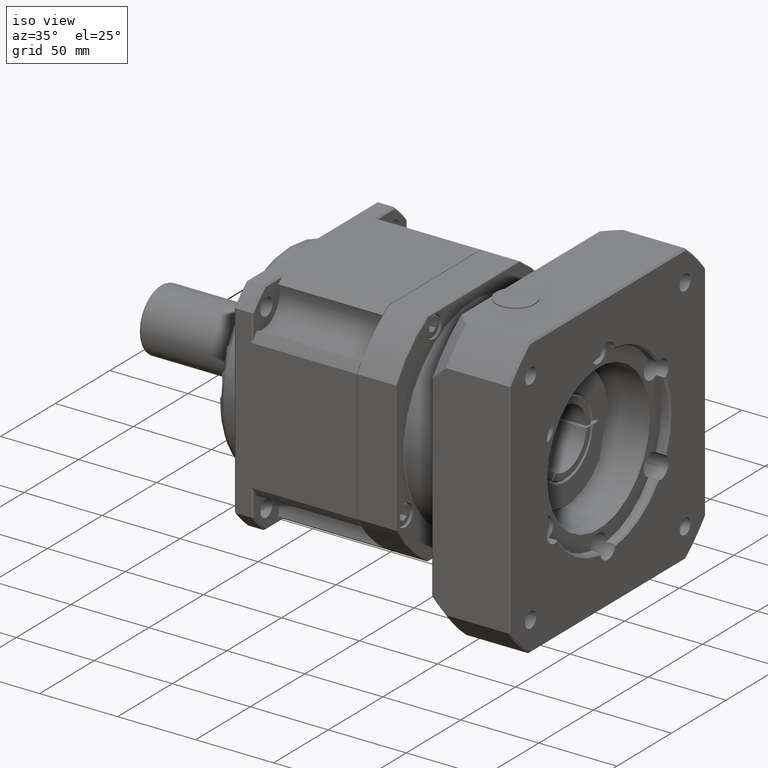
[diagram: clean part render]
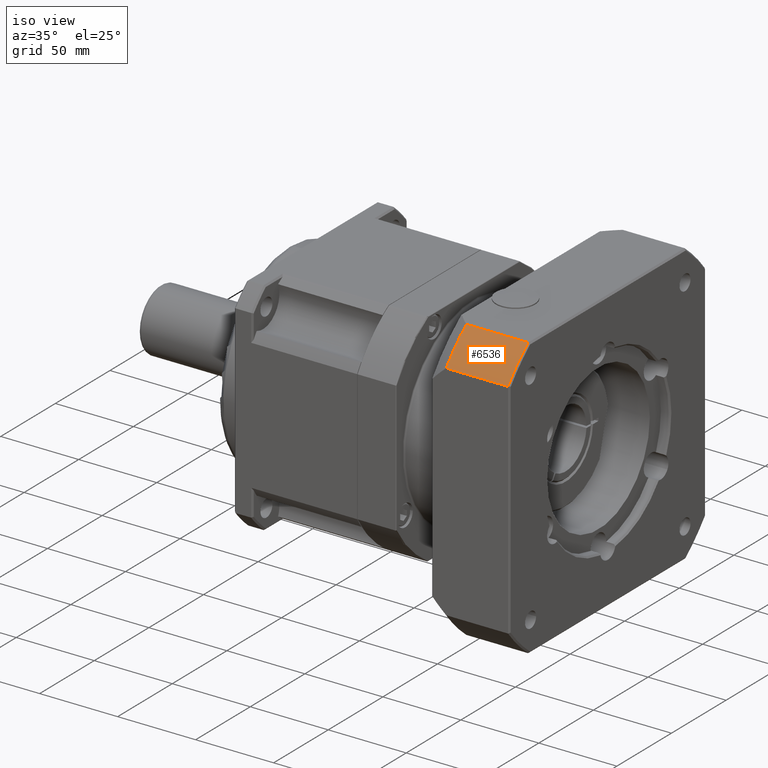
[diagram: same view with one face highlighted and labeled with its STEP entity id]
A machine part, iso view. The second image highlights one B-rep face of the part: STEP entity #6536.
In plain terms, the highlighted cylindrical surface (partial cylindrical patch) has radius 115 mm, axis along (-1, 0, 0).
Its self-contained STEP definition (entity closure, byte-faithful):
#252=LINE('',#10307,#560);
#257=LINE('',#10322,#565);
#560=VECTOR('',#8153,39.6217782649107);
#565=VECTOR('',#8168,39.6217782649107);
#1282=CYLINDRICAL_SURFACE('',#7140,115.);
#1728=FACE_OUTER_BOUND('',#2252,.T.);
#2252=EDGE_LOOP('',(#5021,#5022,#5023,#5024));
#2765=CIRCLE('',#7061,115.);
#2815=CIRCLE('',#7138,115.);
#3208=VERTEX_POINT('',#10304);
#3209=VERTEX_POINT('',#10306);
#3211=VERTEX_POINT('',#10312);
#3214=VERTEX_POINT('',#10320);
#3857=EDGE_CURVE('',#3208,#3209,#252,.T.);
#3861=EDGE_CURVE('',#3208,#3211,#2765,.T.);
#3865=EDGE_CURVE('',#3214,#3211,#257,.T.);
#3951=EDGE_CURVE('',#3209,#3214,#2815,.T.);
#5021=ORIENTED_EDGE('',*,*,#3951,.F.);
#5022=ORIENTED_EDGE('',*,*,#3857,.F.);
#5023=ORIENTED_EDGE('',*,*,#3861,.T.);
#5024=ORIENTED_EDGE('',*,*,#3865,.F.);
#6536=ADVANCED_FACE('',(#1728),#1282,.T.);
#7061=AXIS2_PLACEMENT_3D('',#10314,#8160,#8161);
#7138=AXIS2_PLACEMENT_3D('',#10556,#8335,#8336);
#7140=AXIS2_PLACEMENT_3D('',#10562,#8339,#8340);
#8153=DIRECTION('',(1.,-5.21329617097221E-16,-1.24115431662697E-16));
#8160=DIRECTION('center_axis',(1.,-5.21329617097221E-16,-1.24115431662697E-16));
#8161=DIRECTION('ref_axis',(-1.24115431662696E-16,1.74686654030804E-15,
-1.));
#8168=DIRECTION('',(-1.,5.21329617097221E-16,1.24115431662697E-16));
#8335=DIRECTION('center_axis',(1.,-5.21329617097221E-16,-1.24115431662697E-16));
#8336=DIRECTION('ref_axis',(1.24115431662696E-16,-1.74686654030804E-15,
1.));
#8339=DIRECTION('center_axis',(-1.,5.21329617097221E-16,1.24115431662697E-16));
#8340=DIRECTION('ref_axis',(-1.24115431662696E-16,1.74686654030804E-15,
-1.));
#10304=CARTESIAN_POINT('',(-101.181163537748,-221.899109912561,12.9974740070675));
#10306=CARTESIAN_POINT('',(-61.5593852728371,-221.899109912561,12.9974740070675));
#10307=CARTESIAN_POINT('',(-60.5593852728371,-221.899109912561,12.9974740070675));
#10312=CARTESIAN_POINT('',(-101.181163537748,-240.310004596179,-5.41342067655082));
#10314=CARTESIAN_POINT('Origin',(-101.181163537748,-150.310004596179,-77.0025259929324));
#10320=CARTESIAN_POINT('',(-61.5593852728371,-240.310004596179,-5.41342067655083));
#10322=CARTESIAN_POINT('',(-60.5593852728371,-240.310004596179,-5.41342067655083));
#10556=CARTESIAN_POINT('Origin',(-61.5593852728371,-150.310004596179,-77.0025259929324));
#10562=CARTESIAN_POINT('Origin',(-60.5593852728371,-150.310004596179,-77.0025259929324));